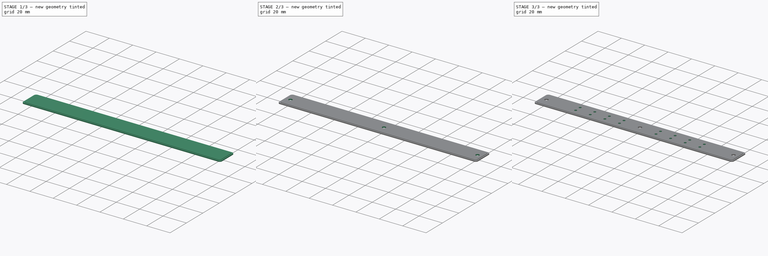
[diagram: build sequence overview — one tinted view per stage of 3, left to right]
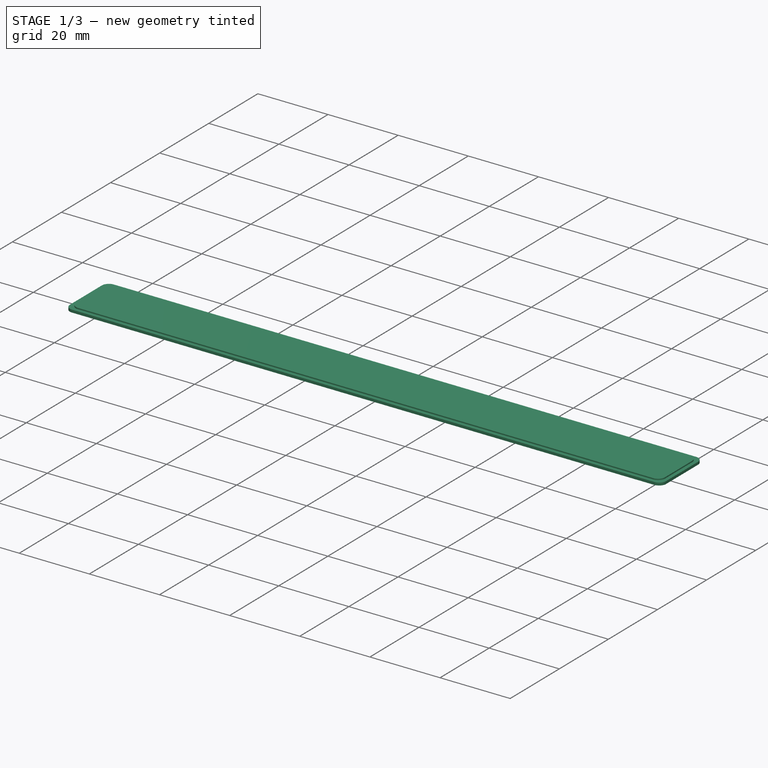
[diagram: stage 1 of 3 — iso view after this stage's code; geometry added in this stage tinted green]
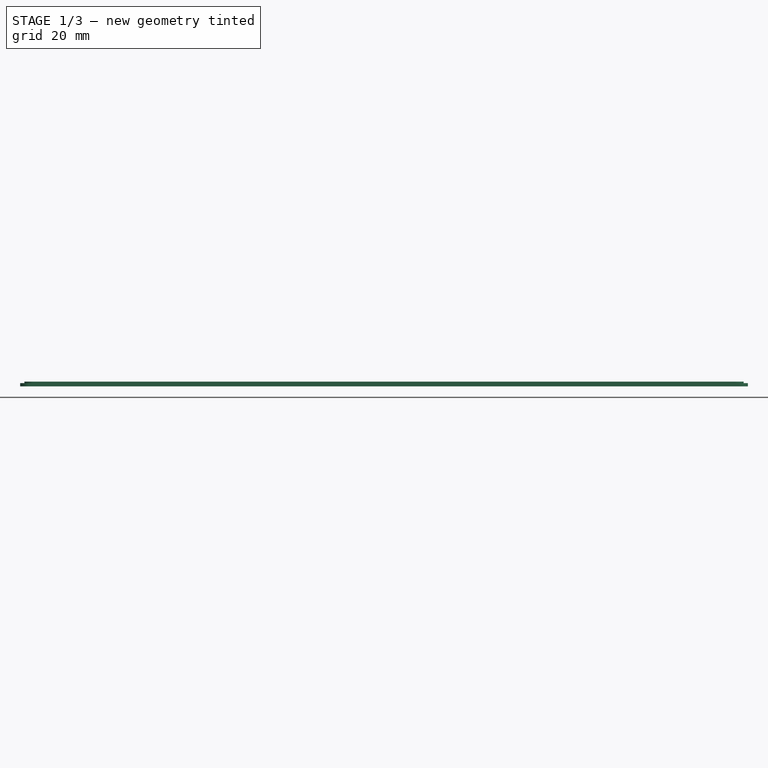
[diagram: stage 1 of 3 — front view after this stage's code; geometry added in this stage tinted green]
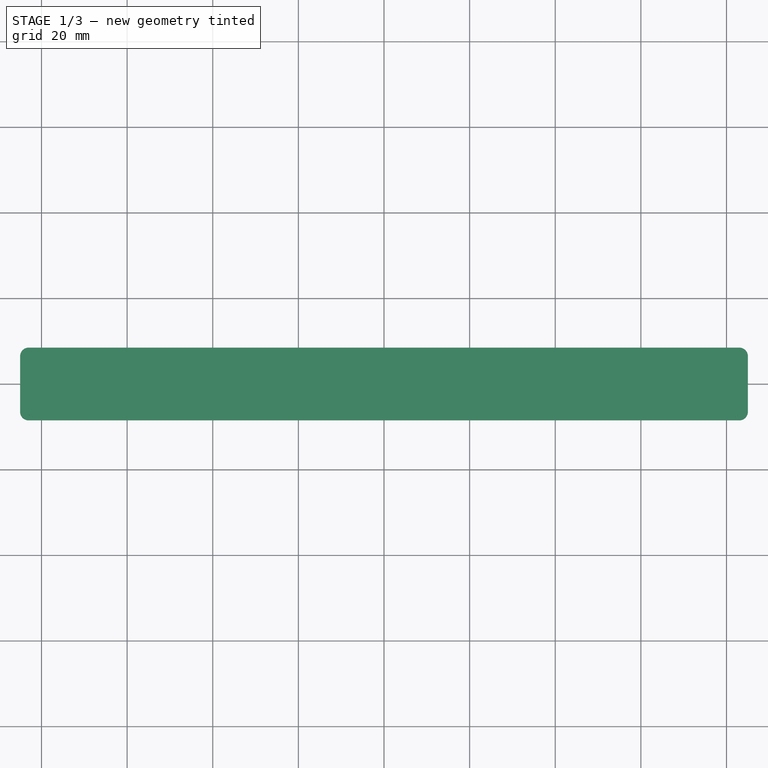
[diagram: stage 1 of 3 — top view after this stage's code; geometry added in this stage tinted green]
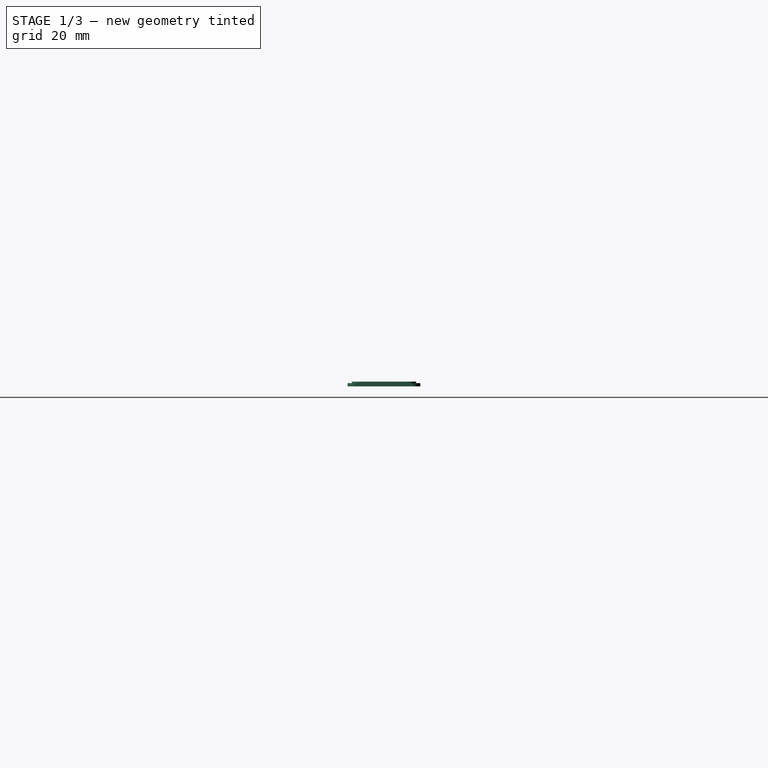
[diagram: stage 1 of 3 — right view after this stage's code; geometry added in this stage tinted green]
FCSTD DOCUMENT  (FreeCAD 0.21R33771 (Git))
Label: iMac_RAM_door_button_panel
License: All rights reserved
LicenseURL: https://en.wikipedia.org/wiki/All_rights_reserved
objects: Sketcher::SketchObject×4, PartDesign::Plane×3, PartDesign::Pad×2, PartDesign::Pocket×2, PartDesign::LinearPattern×1, PartDesign::Mirrored×1, PartDesign::MultiTransform×1, PartDesign::Body×1
note: 19 computed .brp shape members not serialized (recipe doc carries the construction recipe); baked Part::Feature solids carry a one-line shape summary decoded from their .brp

FEATURE [PartDesign::Plane] DatumPlane  label="Bottom Face"
  Length = 188.439
  MapMode = 2
  ResizeMode = 0
  Support = -> [XY_Plane]
  Width = 68.4391
FEATURE [PartDesign::Plane] DatumPlane001  label="Top Face"
  AttachmentOffset = pos=(0,0,1.1) rot=(0,0,1;0rad)
  Length = 188.439
  MapMode = 5
  Placement = pos=(0,0,1.1) rot=(0,0,1;0rad)
  ResizeMode = 0
  Support = -> [DatumPlane]
  Width = 68.4391
FEATURE [PartDesign::Plane] DatumPlane002  label="Step"
  AttachmentOffset = pos=(0,0,0.75) rot=(0,0,1;0rad)
  Length = 188.439
  MapMode = 5
  Placement = pos=(0,0,0.75) rot=(0,0,1;0rad)
  ResizeMode = 0
  Support = -> [DatumPlane]
  Width = 68.4391
FEATURE [Sketcher::SketchObject] Sketch
  FullyConstrained = true
  MapMode = 5
  Support = -> [DatumPlane]
  sketch-geometry (15):
    g0: LineSegment StartX=-85 StartY=-8.5 StartZ=0 EndX=-85 EndY=8.5 EndZ=0
    g1: LineSegment StartX=-85 StartY=8.5 StartZ=0 EndX=85 EndY=8.5 EndZ=0
    g2: LineSegment StartX=85 StartY=8.5 StartZ=0 EndX=85 EndY=-8.5 EndZ=0
    g3: LineSegment StartX=85 StartY=-8.5 StartZ=0 EndX=-85 EndY=-8.5 EndZ=0
    g4: GeomPoint X=0 Y=0 Z=0
    g5: ArcOfCircle CenterX=-83 CenterY=-6.5 CenterZ=0 NormalX=0 NormalY=0 NormalZ=1 AngleXU=0 Radius=2 StartAngle=3.14159 EndAngle=4.71239
    g6: LineSegment StartX=-85 StartY=-6.5 StartZ=0 EndX=-85 EndY=6.5 EndZ=0
    g7: ArcOfCircle CenterX=-83 CenterY=6.5 CenterZ=0 NormalX=0 NormalY=0 NormalZ=1 AngleXU=0 Radius=2 StartAngle=1.5708 EndAngle=3.14159
    g8: LineSegment StartX=-83 StartY=8.5 StartZ=0 EndX=83 EndY=8.5 EndZ=0
    g9: ArcOfCircle CenterX=83 CenterY=6.5 CenterZ=0 NormalX=0 NormalY=0 NormalZ=1 AngleXU=0 Radius=2 StartAngle=1e-16 EndAngle=1.5708
    g10: LineSegment StartX=85 StartY=6.5 StartZ=0 EndX=85 EndY=-6.5 EndZ=0
    g11: ArcOfCircle CenterX=83 CenterY=-6.5 CenterZ=0 NormalX=0 NormalY=0 NormalZ=1 AngleXU=0 Radius=2 StartAngle=4.71239 EndAngle=6.28319
    g12: LineSegment StartX=83 StartY=-8.5 StartZ=0 EndX=-83 EndY=-8.5 EndZ=0
    g13: GeomPoint X=-85 Y=-8.5 Z=0
    g14: GeomPoint X=85 Y=8.5 Z=0
  constraints (34):
    c: Coincident(g0,g1)
    c: Coincident(g1,g2)
    c: Coincident(g2,g3)
    c: Coincident(g3,g0)
    c: Horizontal(g1)
    c: Horizontal(g3)
    c: Vertical(g0)
    c: Vertical(g2)
    c: Symmetric(g1,g0,g4)
    c: Coincident(g4,g-1)
    c: DistanceX(g1,g1) = 170
    c: DistanceY(g2,g2) = 17
    c: Tangent(g5,g6) = 1.5708
    c: Tangent(g6,g7) = 1.5708
    c: Tangent(g7,g8) = 1.5708
    c: Tangent(g8,g9) = 1.5708
    c: Tangent(g9,g10) = 1.5708
    c: Tangent(g10,g11) = 1.5708
    c: Tangent(g11,g12) = 1.5708
    c: Tangent(g12,g5) = 1.5708
    c: Horizontal(g8)
    c: Horizontal(g12)
    c: Vertical(g6)
    c: Vertical(g10)
    c: Equal(g5,g7)
    c: Equal(g7,g9)
    c: Equal(g9,g11)
    c: PointOnObject(g13,g6)
    c: PointOnObject(g13,g12)
    c: PointOnObject(g14,g8)
    c: PointOnObject(g14,g10)
    c: Coincident(g13,g0)
    c: Coincident(g14,g1)
    c: Radius(g5) = 2
FEATURE [PartDesign::Pad] Pad  label="Main"
  Direction = (0,0,1)
  Length = 10
  Length2 = 10
  Profile = -> Sketch
  ReferenceAxis = -> Sketch [N_Axis]
  Type = 3
  UpToFace = -> DatumPlane002
FEATURE [Sketcher::SketchObject] Sketch001
  FullyConstrained = true
  MapMode = 5
  Placement = pos=(0,0,0.75) rot=(0,0,1;0rad)
  Support = -> [DatumPlane002]
  sketch-geometry (15):
    g0: LineSegment StartX=-84 StartY=-7.5 StartZ=0 EndX=-84 EndY=7.5 EndZ=0
    g1: LineSegment StartX=-84 StartY=7.5 StartZ=0 EndX=84 EndY=7.5 EndZ=0
    g2: LineSegment StartX=84 StartY=7.5 StartZ=0 EndX=84 EndY=-7.5 EndZ=0
    g3: LineSegment StartX=84 StartY=-7.5 StartZ=0 EndX=-84 EndY=-7.5 EndZ=0
    g4: GeomPoint X=0 Y=0 Z=0
    g5: ArcOfCircle CenterX=-82 CenterY=-5.5 CenterZ=0 NormalX=0 NormalY=0 NormalZ=1 AngleXU=0 Radius=2 StartAngle=3.14159 EndAngle=4.71239
    g6: LineSegment StartX=-84 StartY=-5.5 StartZ=0 EndX=-84 EndY=5.5 EndZ=0
    g7: ArcOfCircle CenterX=-82 CenterY=5.5 CenterZ=0 NormalX=0 NormalY=0 NormalZ=1 AngleXU=0 Radius=2 StartAngle=1.5708 EndAngle=3.14159
    g8: LineSegment StartX=-82 StartY=7.5 StartZ=0 EndX=82 EndY=7.5 EndZ=0
    g9: ArcOfCircle CenterX=82 CenterY=5.5 CenterZ=0 NormalX=0 NormalY=0 NormalZ=1 AngleXU=0 Radius=2 StartAngle=4.3e-15 EndAngle=1.5708
    g10: LineSegment StartX=84 StartY=5.5 StartZ=0 EndX=84 EndY=-5.5 EndZ=0
    g11: ArcOfCircle CenterX=82 CenterY=-5.5 CenterZ=0 NormalX=0 NormalY=0 NormalZ=1 AngleXU=0 Radius=2 StartAngle=4.71239 EndAngle=6.28319
    g12: LineSegment StartX=82 StartY=-7.5 StartZ=0 EndX=-82 EndY=-7.5 EndZ=0
    g13: GeomPoint X=-84 Y=-7.5 Z=0
    g14: GeomPoint X=84 Y=7.5 Z=0
  constraints (34):
    c: Coincident(g0,g1)
    c: Coincident(g1,g2)
    c: Coincident(g2,g3)
    c: Coincident(g3,g0)
    c: Horizontal(g1)
    c: Horizontal(g3)
    c: Vertical(g0)
    c: Vertical(g2)
    c: Symmetric(g1,g0,g4)
    c: Coincident(g4,g-1)
    c: DistanceY(g2,g2) = 15
    c: DistanceX(g1,g1) = 168
    c: Tangent(g5,g6) = 1.5708
    c: Tangent(g6,g7) = 1.5708
    c: Tangent(g7,g8) = 1.5708
    c: Tangent(g8,g9) = 1.5708
    c: Tangent(g9,g10) = 1.5708
    c: Tangent(g10,g11) = 1.5708
    c: Tangent(g11,g12) = 1.5708
    c: Tangent(g12,g5) = 1.5708
    c: Horizontal(g8)
    c: Horizontal(g12)
    c: Vertical(g6)
    c: Vertical(g10)
    c: Equal(g5,g7)
    c: Equal(g7,g9)
    c: Equal(g9,g11)
    c: PointOnObject(g13,g6)
    c: PointOnObject(g13,g12)
    c: PointOnObject(g14,g8)
    c: PointOnObject(g14,g10)
    c: Coincident(g13,g0)
    c: Coincident(g14,g1)
    c: Radius(g5) = 2
FEATURE [PartDesign::Pad] Pad001  label="Inset"
  BaseFeature = -> Pad
  Direction = (0,0,1)
  Length = 10
  Length2 = 10
  Profile = -> Sketch001
  ReferenceAxis = -> Sketch001 [N_Axis]
  Type = 3
  UpToFace = -> DatumPlane001
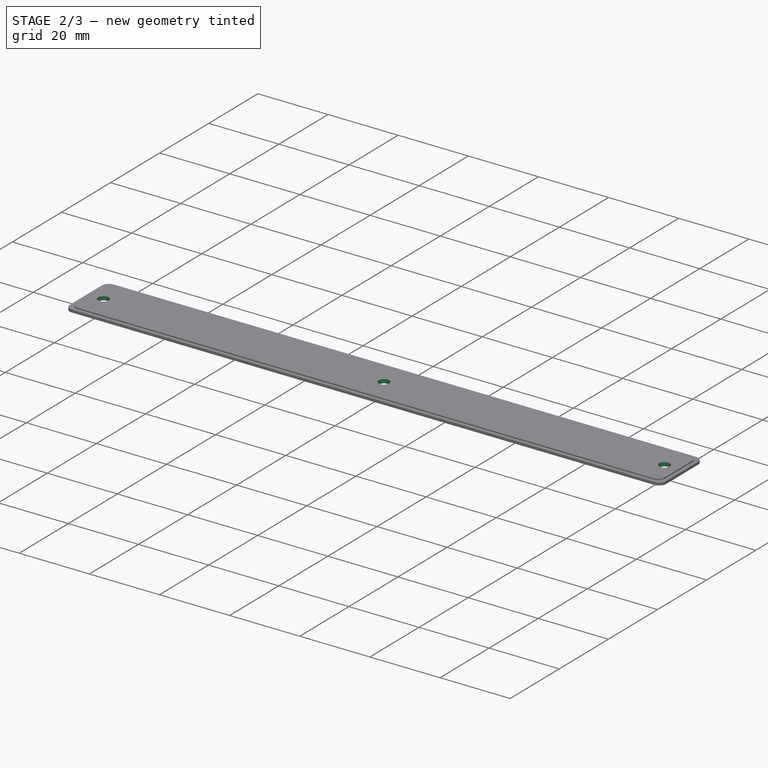
[diagram: stage 2 of 3 — iso view after this stage's code; geometry added in this stage tinted green]
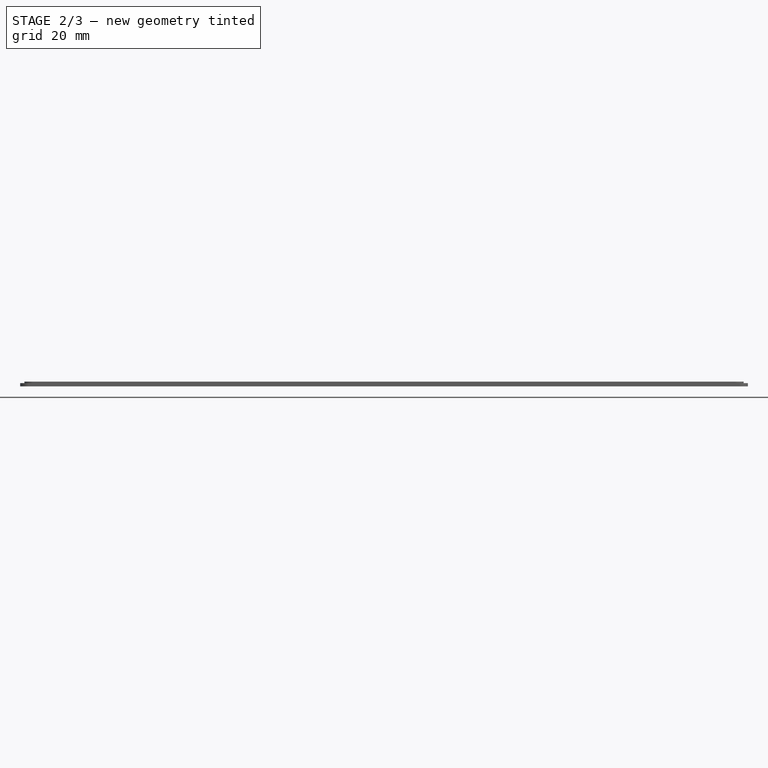
[diagram: stage 2 of 3 — front view after this stage's code; geometry added in this stage tinted green]
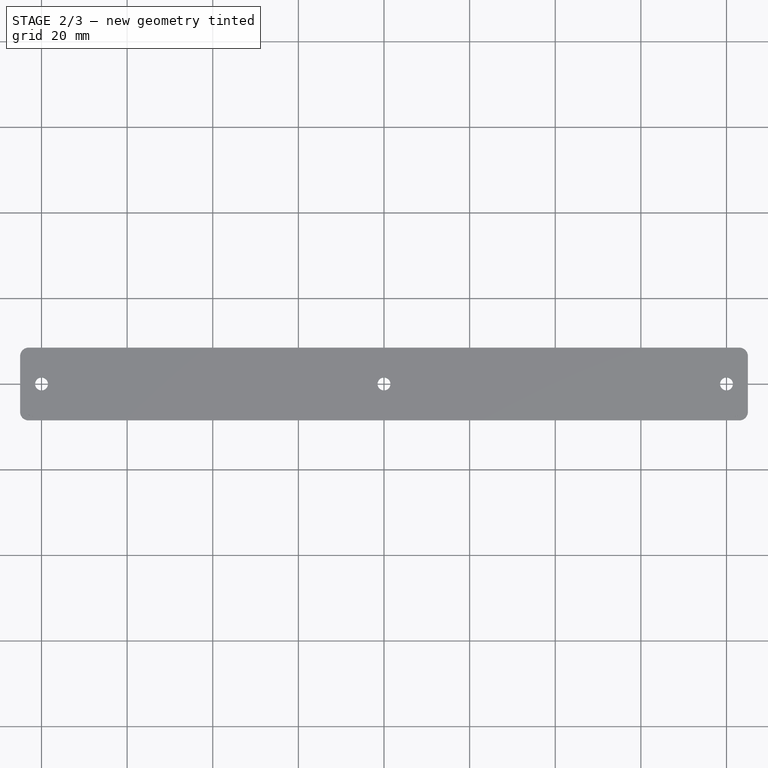
[diagram: stage 2 of 3 — top view after this stage's code; geometry added in this stage tinted green]
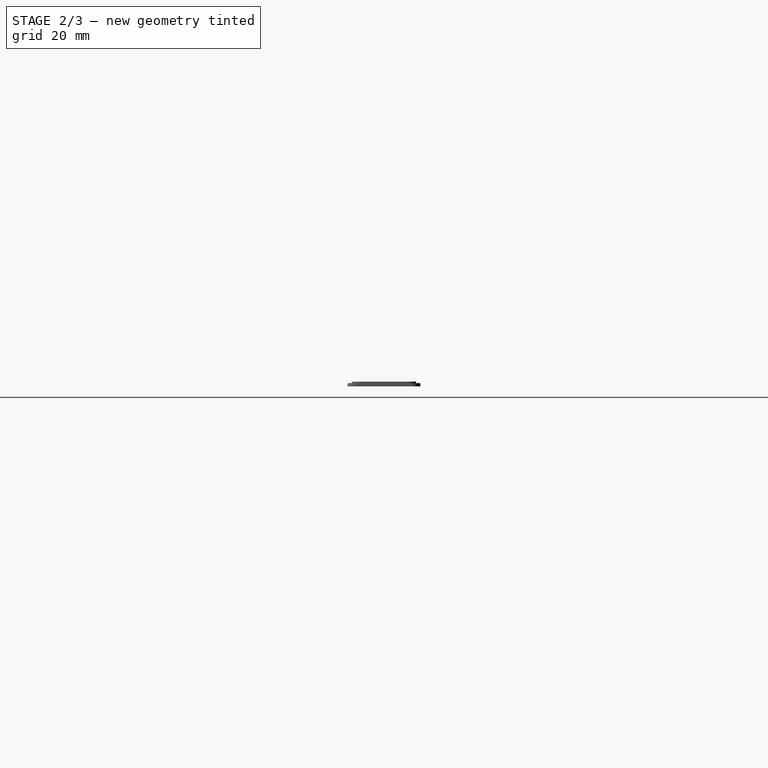
[diagram: stage 2 of 3 — right view after this stage's code; geometry added in this stage tinted green]
FEATURE [Sketcher::SketchObject] Sketch002
  FullyConstrained = true
  MapMode = 5
  Placement = pos=(0,0,1.1) rot=(0,0,1;0rad)
  Support = -> [DatumPlane001]
  expr: Constraints[7] = .Constraints.hole_offset
  sketch-geometry (3):
    g0: Circle CenterX=-80 CenterY=0 CenterZ=0 NormalX=0 NormalY=0 NormalZ=1 AngleXU=0 Radius=1.5
    g1: Circle CenterX=0 CenterY=0 CenterZ=0 NormalX=0 NormalY=0 NormalZ=1 AngleXU=0 Radius=1.5
    g2: Circle CenterX=80 CenterY=0 CenterZ=0 NormalX=0 NormalY=0 NormalZ=1 AngleXU=0 Radius=1.5
  constraints (8):
    c: PointOnObject(g0,g-1)
    c: Coincident(g1,g-1)
    c: PointOnObject(g2,g-1)
    c: Equal(g0,g1)
    c: Equal(g1,g2)
    c: Diameter(g2) = 3
    c: DistanceX(g1,g2) = 80  'hole_offset'
    c: DistanceX(g0,g1) = 80
FEATURE [PartDesign::Pocket] Pocket  label="Mounting Holes"
  BaseFeature = -> Pad001
  Direction = (0,0,-1)
  Length = 0
  Length2 = 5
  Profile = -> Sketch002
  ReferenceAxis = -> Sketch002 [N_Axis]
  Type = 3
  UpToFace = -> DatumPlane
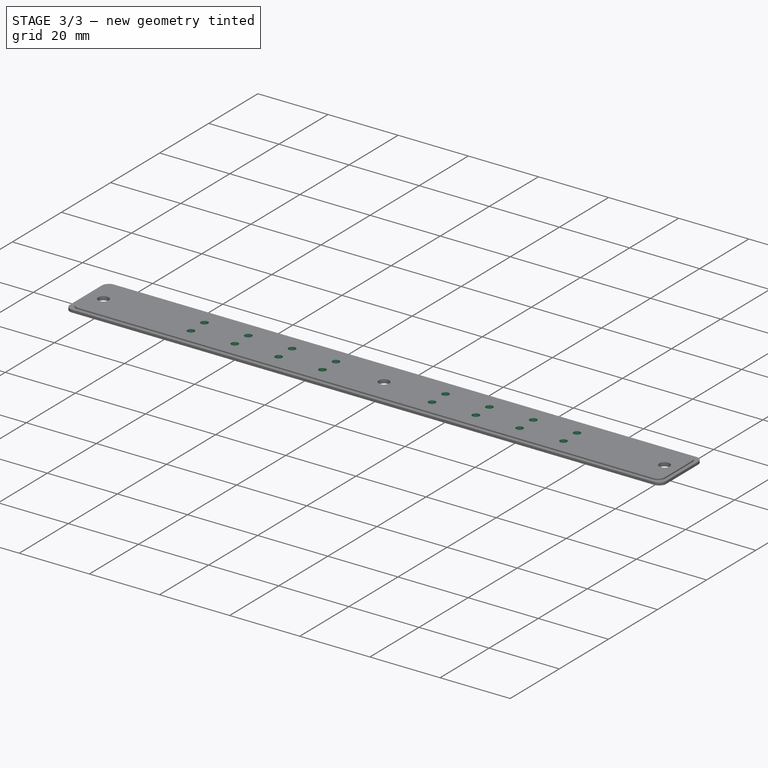
[diagram: stage 3 of 3 — iso view after this stage's code; geometry added in this stage tinted green]
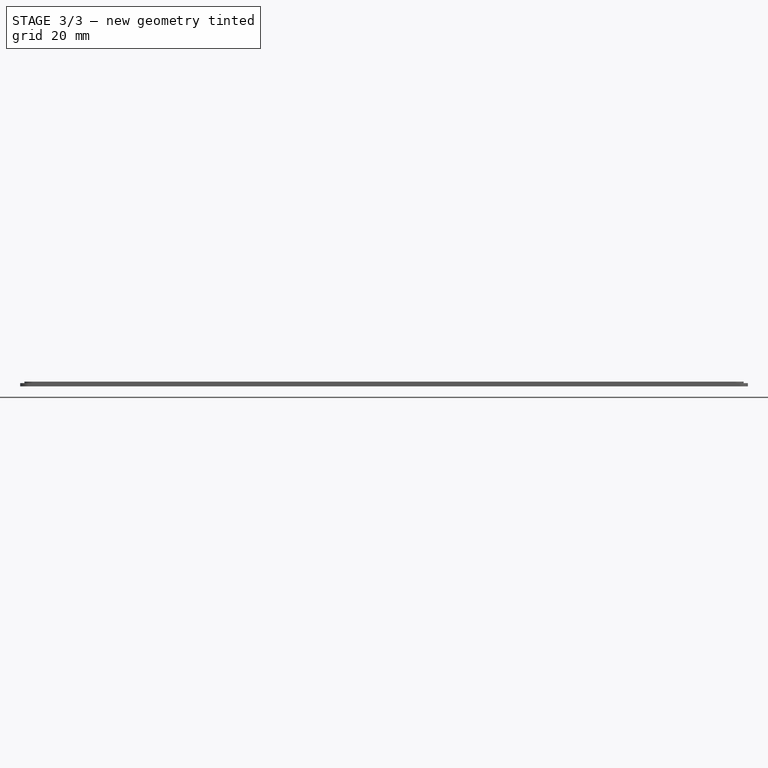
[diagram: stage 3 of 3 — front view after this stage's code; geometry added in this stage tinted green]
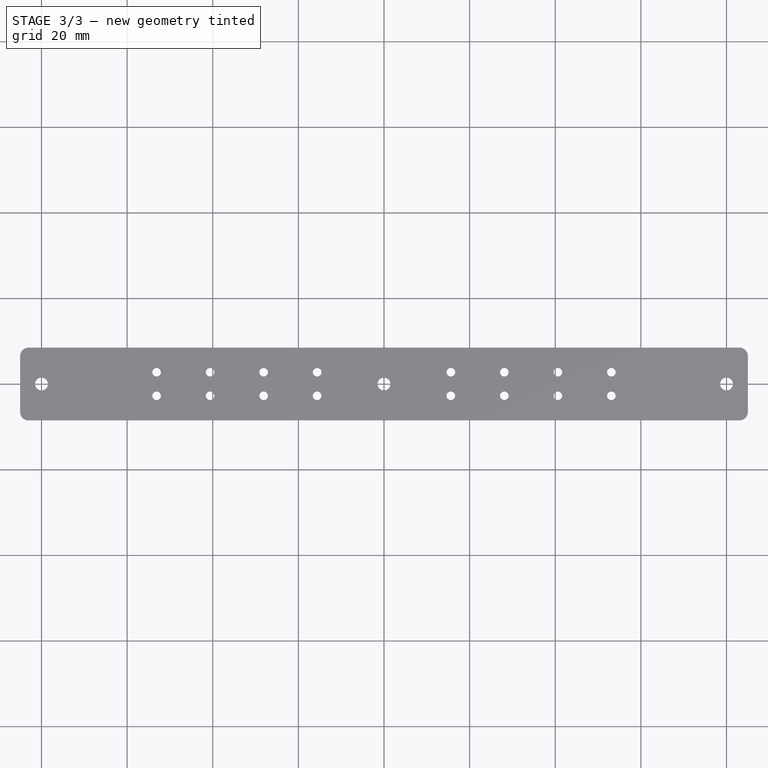
[diagram: stage 3 of 3 — top view after this stage's code; geometry added in this stage tinted green]
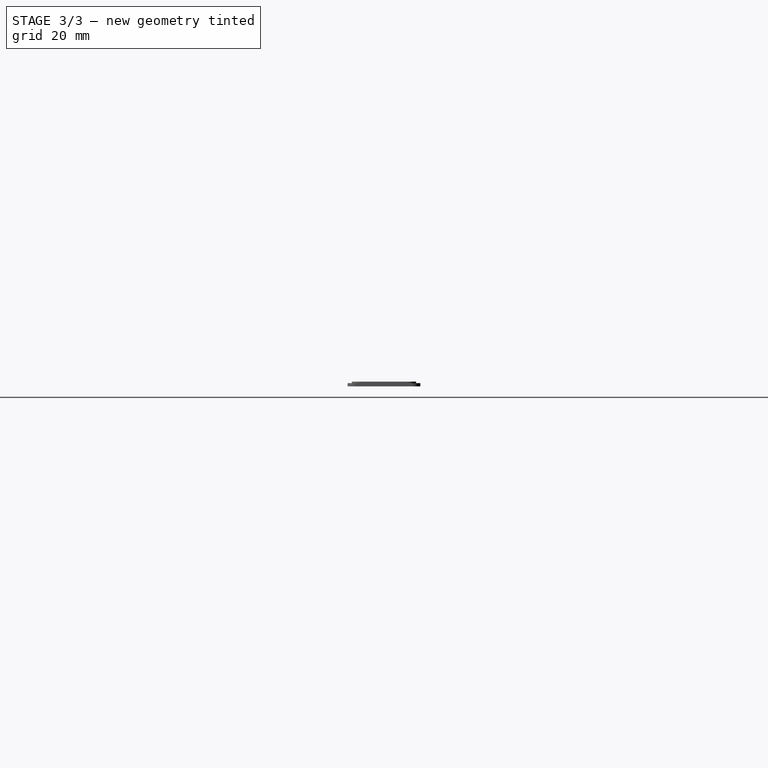
[diagram: stage 3 of 3 — right view after this stage's code; geometry added in this stage tinted green]
FEATURE [Sketcher::SketchObject] Sketch003
  FullyConstrained = false
  MapMode = 5
  Placement = pos=(0,0,1.1) rot=(0,0,1;0rad)
  Support = -> [DatumPlane001]
  sketch-geometry (9):
    g0: LineSegment StartX=15.6155 StartY=-2.75 StartZ=0 EndX=15.6155 EndY=2.75 EndZ=0
    g1: LineSegment StartX=15.6155 StartY=2.75 StartZ=0 EndX=28.1155 EndY=2.75 EndZ=0
    g2: LineSegment StartX=28.1155 StartY=2.75 StartZ=0 EndX=28.1155 EndY=-2.75 EndZ=0
    g3: LineSegment StartX=28.1155 StartY=-2.75 StartZ=0 EndX=15.6155 EndY=-2.75 EndZ=0
    g4: Circle CenterX=15.6155 CenterY=2.75 CenterZ=0 NormalX=0 NormalY=0 NormalZ=1 AngleXU=0 Radius=1
    g5: Circle CenterX=28.1155 CenterY=2.75 CenterZ=0 NormalX=0 NormalY=0 NormalZ=1 AngleXU=0 Radius=1
    g6: Circle CenterX=28.1155 CenterY=-2.75 CenterZ=0 NormalX=0 NormalY=0 NormalZ=1 AngleXU=0 Radius=1
    g7: Circle CenterX=15.6155 CenterY=-2.75 CenterZ=0 NormalX=0 NormalY=0 NormalZ=1 AngleXU=0 Radius=1
    g8: GeomPoint X=21.8655 Y=0 Z=0
  constraints (20):
    c: Coincident(g0,g1)
    c: Coincident(g1,g2)
    c: Coincident(g2,g3)
    c: Coincident(g3,g0)
    c: Horizontal(g1)
    c: Horizontal(g3)
    c: Vertical(g0)
    c: Vertical(g2)
    c: DistanceX(g1,g1) = 12.5
    c: DistanceY(g2,g2) = 5.5
    c: Coincident(g4,g0)
    c: Coincident(g5,g1)
    c: Coincident(g6,g2)
    c: Coincident(g7,g0)
    c: Equal(g4,g5)
    c: Equal(g5,g6)
    c: Equal(g6,g7)
    c: Diameter(g7) = 2
    c: Symmetric(g5,g7,g8)
    c: PointOnObject(g8,g-1)
FEATURE [PartDesign::Pocket] Pocket001
  BaseFeature = -> Pocket
  Direction = (0,0,-1)
  Length = 0
  Length2 = 5
  Profile = -> Sketch003
  ReferenceAxis = -> Sketch003 [N_Axis]
  Type = 3
  UpToFace = -> DatumPlane
FEATURE [PartDesign::LinearPattern] LinearPattern
  Direction = -> Sketch003 [H_Axis]
  Length = 25
  Occurrences = 2
FEATURE [PartDesign::Mirrored] Mirrored
  MirrorPlane = -> Sketch003 [V_Axis]
FEATURE [PartDesign::MultiTransform] MultiTransform
  BaseFeature = -> Pocket001
  Originals = -> [Pocket001]
  Transformations = -> [LinearPattern,Mirrored]
FEATURE [PartDesign::Body] Body
  Group = -> [DatumPlane,DatumPlane002,DatumPlane001,Sketch,Pad,Sketch001,Pad001,Sketch002,Pocket,Sketch003,Pocket001,MultiTransform,LinearPattern,Mirrored]
  Origin = -> Origin
  Tip = -> MultiTransform
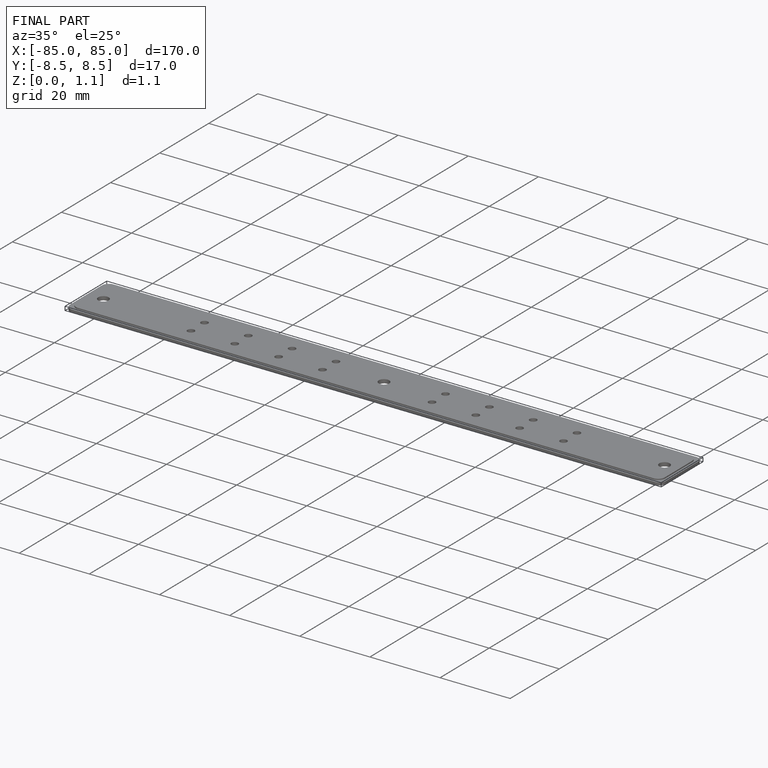
[diagram: finished part — iso view with bounding-box wireframe]
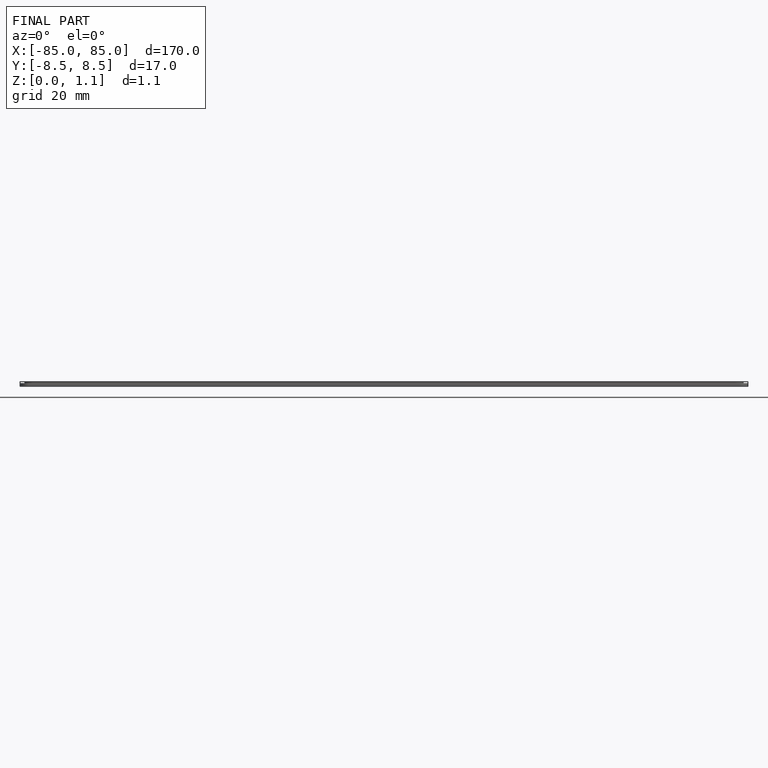
[diagram: finished part — front view with bounding-box wireframe]
